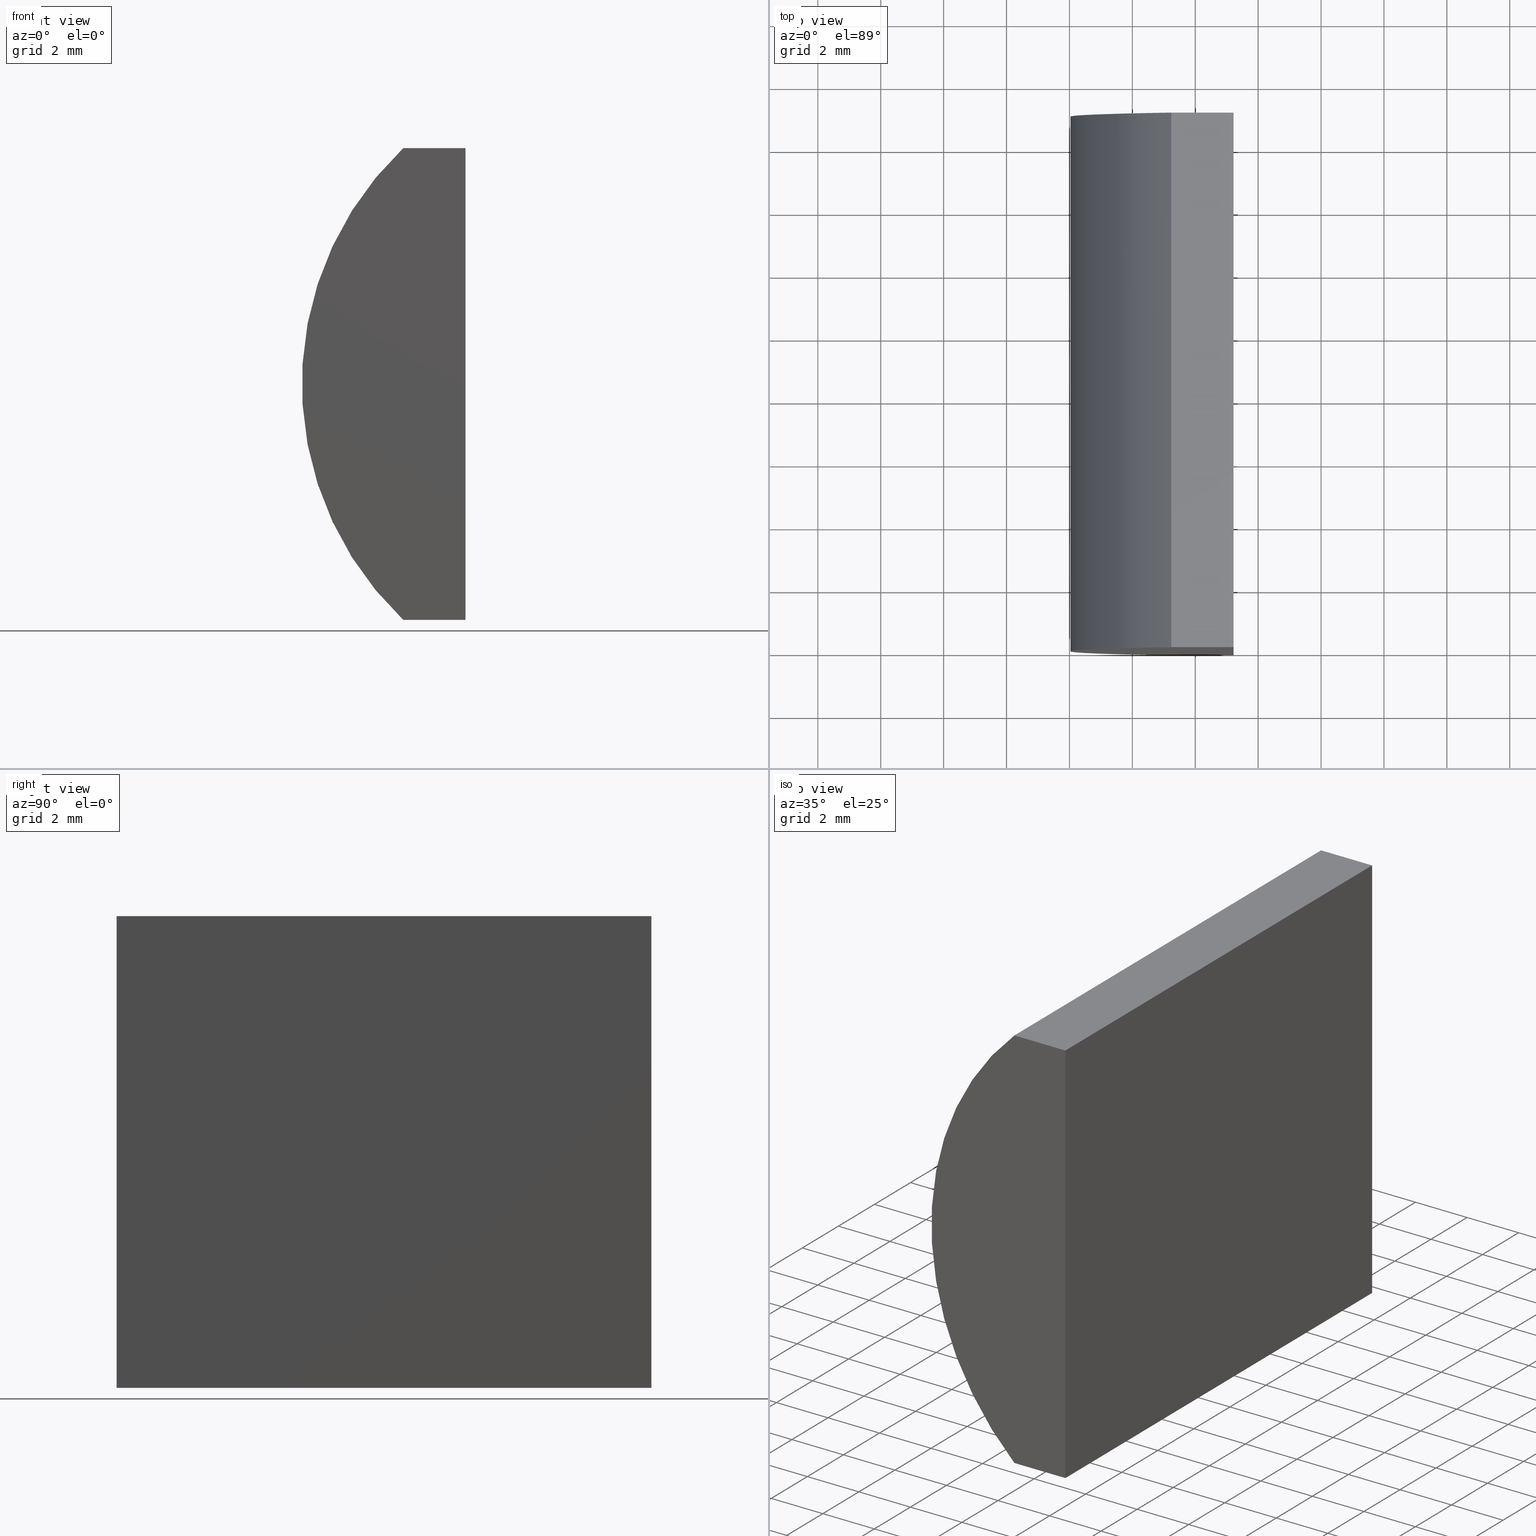
[diagram: canonical four-view strip — front | top / right | iso, engineering-drawing reading convention]
A machine part, canonical four-view strip (front | top / right | iso — engineering-drawing reading convention). The complete STEP part file that produces these views, byte-faithful:
ISO-10303-21;
HEADER;
FILE_DESCRIPTION (( 'STEP AP214' ),
    '1' );
FILE_NAME ('155022.STEP',
    '2019-06-17T05:29:46',
    ( 'user' ),
    ( '΢���й�' ),
    'SwSTEP 2.0',
    'SolidWorks 2016',
    '' );
FILE_SCHEMA (( 'AUTOMOTIVE_DESIGN' ));
ENDSEC;

DATA;
#1 = VECTOR ( 'NONE', #148, 1000.000000000000000 ) ;
#2 = EDGE_LOOP ( 'NONE', ( #169, #146, #159, #126 ) ) ;
#3 = ORIENTED_EDGE ( 'NONE', *, *, #68, .F. ) ;
#4 = ADVANCED_FACE ( 'NONE', ( #118 ), #129, .T. ) ;
#5 = SURFACE_STYLE_USAGE ( .BOTH. , #98 ) ;
#6 = UNCERTAINTY_MEASURE_WITH_UNIT (LENGTH_MEASURE( 1.000000000000000100E-005 ), #197, 'distance_accuracy_value', 'NONE');
#7 = CARTESIAN_POINT ( 'NONE',  ( -2.762772905910325900, 0.0000000000000000000, 7.500000000000000000 ) ) ;
#8 = FACE_OUTER_BOUND ( 'NONE', #138, .T. ) ;
#9 = ORIENTED_EDGE ( 'NONE', *, *, #119, .T. ) ;
#10 = ORIENTED_EDGE ( 'NONE', *, *, #71, .T. ) ;
#11 = EDGE_CURVE ( 'NONE', #115, #194, #108, .T. ) ;
#12 = VERTEX_POINT ( 'NONE', #149 ) ;
#13 = DIRECTION ( 'NONE',  ( 1.000000000000000000, 0.0000000000000000000, 0.0000000000000000000 ) ) ;
#14 = VECTOR ( 'NONE', #84, 1000.000000000000000 ) ;
#15 = PRODUCT_DEFINITION ( 'δ֪', '', #168, #96 ) ;
#16 = APPLICATION_CONTEXT ( 'automotive_design' ) ;
#17 = CARTESIAN_POINT ( 'NONE',  ( -2.762772905910325900, 0.0000000000000000000, -7.500000000000000000 ) ) ;
#18 = ORIENTED_EDGE ( 'NONE', *, *, #21, .T. ) ;
#19 = DIRECTION ( 'NONE',  ( -3.469446951953612200E-016, -0.0000000000000000000, -1.000000000000000000 ) ) ;
#20 =( LENGTH_UNIT ( ) NAMED_UNIT ( * ) SI_UNIT ( .MILLI., .METRE. ) );
#21 = EDGE_CURVE ( 'NONE', #77, #115, #198, .T. ) ;
#22 = CARTESIAN_POINT ( 'NONE',  ( -2.762772905910325900, 17.00000000000000000, 7.500000000000000000 ) ) ;
#23 = CARTESIAN_POINT ( 'NONE',  ( 4.355204334851265500, 0.0000000000000000000, 4.286263797015675000E-017 ) ) ;
#24 = CARTESIAN_POINT ( 'NONE',  ( 4.355204334851265500, 17.00000000000000000, 4.286263797015675000E-017 ) ) ;
#25 = STYLED_ITEM ( 'NONE', ( #165 ), #136 ) ;
#26 = DIRECTION ( 'NONE',  ( 4.385094631596678500E-015, -0.0000000000000000000, 1.000000000000000000 ) ) ;
#27 = CARTESIAN_POINT ( 'NONE',  ( -2.762772905910325900, 17.00000000000000000, -7.500000000000000000 ) ) ;
#28 = DIRECTION ( 'NONE',  ( -1.000000000000000000, 0.0000000000000000000, 3.469446951953612200E-016 ) ) ;
#29 = LINE ( 'NONE', #7, #65 ) ;
#30 =( GEOMETRIC_REPRESENTATION_CONTEXT ( 3 ) GLOBAL_UNCERTAINTY_ASSIGNED_CONTEXT ( ( #93 ) ) GLOBAL_UNIT_ASSIGNED_CONTEXT ( ( #20, #36, #199 ) ) REPRESENTATION_CONTEXT ( 'NONE', 'WORKASPACE' ) );
#31 = CLOSED_SHELL ( 'NONE', ( #4, #120, #140, #189, #61, #80 ) ) ;
#32 = ORIENTED_EDGE ( 'NONE', *, *, #180, .T. ) ;
#33 =( LENGTH_UNIT ( ) NAMED_UNIT ( * ) SI_UNIT ( .MILLI., .METRE. ) );
#34 = AXIS2_PLACEMENT_3D ( 'NONE', #191, #28, #92 ) ;
#35 = FILL_AREA_STYLE_COLOUR ( '', #152 ) ;
#36 =( NAMED_UNIT ( * ) PLANE_ANGLE_UNIT ( ) SI_UNIT ( $, .RADIAN. ) );
#37 = LINE ( 'NONE', #17, #47 ) ;
#38 = ORIENTED_EDGE ( 'NONE', *, *, #79, .T. ) ;
#39 =( NAMED_UNIT ( * ) PLANE_ANGLE_UNIT ( ) SI_UNIT ( $, .RADIAN. ) );
#40 =( GEOMETRIC_REPRESENTATION_CONTEXT ( 3 ) GLOBAL_UNCERTAINTY_ASSIGNED_CONTEXT ( ( #144 ) ) GLOBAL_UNIT_ASSIGNED_CONTEXT ( ( #33, #100, #104 ) ) REPRESENTATION_CONTEXT ( 'NONE', 'WORKASPACE' ) );
#41 = CARTESIAN_POINT ( 'NONE',  ( -2.762772905910325900, 17.00000000000000000, 7.500000000000000000 ) ) ;
#42 = VECTOR ( 'NONE', #203, 1000.000000000000000 ) ;
#43 = EDGE_CURVE ( 'NONE', #115, #181, #166, .T. ) ;
#44 = CARTESIAN_POINT ( 'NONE',  ( -2.762772905910325900, 17.00000000000000000, -7.500000000000000000 ) ) ;
#45 = SURFACE_STYLE_FILL_AREA ( #167 ) ;
#46 = MECHANICAL_DESIGN_GEOMETRIC_PRESENTATION_REPRESENTATION (  '', ( #97 ), #30 ) ;
#47 = VECTOR ( 'NONE', #188, 1000.000000000000000 ) ;
#48 = SURFACE_STYLE_USAGE ( .BOTH. , #137 ) ;
#49 = DIRECTION ( 'NONE',  ( 0.0000000000000000000, 0.0000000000000000000, -1.000000000000000000 ) ) ;
#50 = LINE ( 'NONE', #124, #99 ) ;
#51 = ORIENTED_EDGE ( 'NONE', *, *, #119, .F. ) ;
#52 = AXIS2_PLACEMENT_3D ( 'NONE', #121, #88, #13 ) ;
#53 = ORIENTED_EDGE ( 'NONE', *, *, #43, .T. ) ;
#54 = CARTESIAN_POINT ( 'NONE',  ( -2.762772905910325900, 17.00000000000000000, -7.500000000000000000 ) ) ;
#55 = APPLICATION_PROTOCOL_DEFINITION ( 'draft international standard', 'automotive_design', 1998, #147 ) ;
#56 = PRESENTATION_LAYER_ASSIGNMENT (  '', '', ( #97 ) ) ;
#57 = PLANE ( 'NONE',  #184 ) ;
#58 =( GEOMETRIC_REPRESENTATION_CONTEXT ( 3 ) GLOBAL_UNCERTAINTY_ASSIGNED_CONTEXT ( ( #6 ) ) GLOBAL_UNIT_ASSIGNED_CONTEXT ( ( #197, #39, #185 ) ) REPRESENTATION_CONTEXT ( 'NONE', 'WORKASPACE' ) );
#59 = DIRECTION ( 'NONE',  ( 0.0000000000000000000, 1.000000000000000000, 0.0000000000000000000 ) ) ;
#60 = VERTEX_POINT ( 'NONE', #161 ) ;
#61 = ADVANCED_FACE ( 'NONE', ( #117 ), #57, .T. ) ;
#62 = PRESENTATION_LAYER_ASSIGNMENT (  '', '', ( #25 ) ) ;
#63 = PRODUCT_DEFINITION_SHAPE ( 'NONE', 'NONE',  #15 ) ;
#64 = CARTESIAN_POINT ( 'NONE',  ( -2.762772905910325900, 0.0000000000000000000, -7.500000000000000000 ) ) ;
#65 = VECTOR ( 'NONE', #73, 1000.000000000000000 ) ;
#66 = CARTESIAN_POINT ( 'NONE',  ( -0.7847956651487412200, 17.00000000000000000, -7.500000000000008000 ) ) ;
#67 = ORIENTED_EDGE ( 'NONE', *, *, #131, .T. ) ;
#68 = EDGE_CURVE ( 'NONE', #82, #12, #86, .T. ) ;
#69 = EDGE_LOOP ( 'NONE', ( #157, #173, #114, #78 ) ) ;
#70 = FACE_OUTER_BOUND ( 'NONE', #69, .T. ) ;
#71 = EDGE_CURVE ( 'NONE', #76, #12, #107, .T. ) ;
#72 = DIRECTION ( 'NONE',  ( 0.0000000000000000000, 0.0000000000000000000, -1.000000000000000000 ) ) ;
#73 = DIRECTION ( 'NONE',  ( 1.000000000000000000, 0.0000000000000000000, 0.0000000000000000000 ) ) ;
#74 = DIRECTION ( 'NONE',  ( 0.0000000000000000000, -0.0000000000000000000, 1.000000000000000000 ) ) ;
#75 = VECTOR ( 'NONE', #200, 1000.000000000000000 ) ;
#76 = VERTEX_POINT ( 'NONE', #85 ) ;
#77 = VERTEX_POINT ( 'NONE', #163 ) ;
#78 = ORIENTED_EDGE ( 'NONE', *, *, #11, .T. ) ;
#79 = EDGE_CURVE ( 'NONE', #12, #60, #29, .T. ) ;
#80 = ADVANCED_FACE ( 'NONE', ( #81 ), #94, .F. ) ;
#81 = FACE_OUTER_BOUND ( 'NONE', #112, .T. ) ;
#82 = VERTEX_POINT ( 'NONE', #64 ) ;
#83 = AXIS2_PLACEMENT_3D ( 'NONE', #23, #164, #102 ) ;
#84 = DIRECTION ( 'NONE',  ( -0.0000000000000000000, -1.000000000000000000, -0.0000000000000000000 ) ) ;
#85 = CARTESIAN_POINT ( 'NONE',  ( -2.762772905910325900, 17.00000000000000000, 7.500000000000000000 ) ) ;
#86 = CIRCLE ( 'NONE', #83, 10.34000000000000000 ) ;
#87 = AXIS2_PLACEMENT_3D ( 'NONE', #44, #26, #183 ) ;
#88 = DIRECTION ( 'NONE',  ( 0.0000000000000000000, 0.0000000000000000000, 1.000000000000000000 ) ) ;
#89 = CARTESIAN_POINT ( 'NONE',  ( -2.762772905910325900, 17.00000000000000000, 7.500000000000000000 ) ) ;
#90 = VECTOR ( 'NONE', #139, 1000.000000000000000 ) ;
#91 = ORIENTED_EDGE ( 'NONE', *, *, #171, .F. ) ;
#92 = DIRECTION ( 'NONE',  ( 3.469446951953612200E-016, 0.0000000000000000000, 1.000000000000000000 ) ) ;
#93 = UNCERTAINTY_MEASURE_WITH_UNIT (LENGTH_MEASURE( 1.000000000000000100E-005 ), #20, 'distance_accuracy_value', 'NONE');
#94 = PLANE ( 'NONE',  #196 ) ;
#95 = FACE_OUTER_BOUND ( 'NONE', #101, .T. ) ;
#96 = PRODUCT_DEFINITION_CONTEXT ( 'detailed design', #147, 'design' ) ;
#97 = STYLED_ITEM ( 'NONE', ( #156 ), #187 ) ;
#98 = SURFACE_SIDE_STYLE ('',( #113 ) ) ;
#99 = VECTOR ( 'NONE', #19, 1000.000000000000000 ) ;
#100 =( NAMED_UNIT ( * ) PLANE_ANGLE_UNIT ( ) SI_UNIT ( $, .RADIAN. ) );
#101 = EDGE_LOOP ( 'NONE', ( #38, #123, #51, #10 ) ) ;
#102 = DIRECTION ( 'NONE',  ( 0.0000000000000000000, 0.0000000000000000000, 1.000000000000000000 ) ) ;
#103 = PRODUCT_CONTEXT ( 'NONE', #16, 'mechanical' ) ;
#104 =( NAMED_UNIT ( * ) SI_UNIT ( $, .STERADIAN. ) SOLID_ANGLE_UNIT ( ) );
#105 = PRODUCT_RELATED_PRODUCT_CATEGORY ( 'part', '', ( #170 ) ) ;
#106 = DIRECTION ( 'NONE',  ( -0.0000000000000000000, -1.000000000000000000, -0.0000000000000000000 ) ) ;
#107 = LINE ( 'NONE', #22, #42 ) ;
#108 = LINE ( 'NONE', #182, #75 ) ;
#109 = CARTESIAN_POINT ( 'NONE',  ( 4.355204334851265500, 17.00000000000000000, 4.286263797015675000E-017 ) ) ;
#110 = LINE ( 'NONE', #89, #90 ) ;
#111 = COLOUR_RGB ( '',1.000000000000000000, 1.000000000000000000, 1.000000000000000000 ) ;
#112 = EDGE_LOOP ( 'NONE', ( #3, #179, #91, #155 ) ) ;
#113 = SURFACE_STYLE_FILL_AREA ( #190 ) ;
#114 = ORIENTED_EDGE ( 'NONE', *, *, #43, .F. ) ;
#115 = VERTEX_POINT ( 'NONE', #174 ) ;
#116 = AXIS2_PLACEMENT_3D ( 'NONE', #109, #135, #151 ) ;
#117 = FACE_OUTER_BOUND ( 'NONE', #186, .T. ) ;
#118 = FACE_OUTER_BOUND ( 'NONE', #2, .T. ) ;
#119 = EDGE_CURVE ( 'NONE', #76, #77, #110, .T. ) ;
#120 = ADVANCED_FACE ( 'NONE', ( #95 ), #177, .F. ) ;
#121 = CARTESIAN_POINT ( 'NONE',  ( 0.0000000000000000000, 0.0000000000000000000, 0.0000000000000000000 ) ) ;
#122 = CIRCLE ( 'NONE', #116, 10.34000000000000000 ) ;
#123 = ORIENTED_EDGE ( 'NONE', *, *, #180, .F. ) ;
#124 = CARTESIAN_POINT ( 'NONE',  ( -0.7847956651487412200, 0.0000000000000000000, -7.500000000000008000 ) ) ;
#125 = DIRECTION ( 'NONE',  ( -1.000000000000000000, 0.0000000000000000000, -0.0000000000000000000 ) ) ;
#126 = ORIENTED_EDGE ( 'NONE', *, *, #150, .T. ) ;
#127 = CARTESIAN_POINT ( 'NONE',  ( 4.355204334851265500, 0.0000000000000000000, 4.286263797015675000E-017 ) ) ;
#128 = LINE ( 'NONE', #27, #134 ) ;
#129 = CYLINDRICAL_SURFACE ( 'NONE', #176, 10.34000000000000000 ) ;
#130 = APPLICATION_PROTOCOL_DEFINITION ( 'draft international standard', 'automotive_design', 1998, #16 ) ;
#131 = EDGE_CURVE ( 'NONE', #181, #76, #122, .T. ) ;
#132 = DIRECTION ( 'NONE',  ( -1.000000000000000000, -0.0000000000000000000, 4.385094631596678500E-015 ) ) ;
#133 = FILL_AREA_STYLE_COLOUR ( '', #111 ) ;
#134 = VECTOR ( 'NONE', #106, 1000.000000000000000 ) ;
#135 = DIRECTION ( 'NONE',  ( 0.0000000000000000000, 1.000000000000000000, 0.0000000000000000000 ) ) ;
#136 = ADVANCED_BREP_SHAPE_REPRESENTATION ( '155022', ( #187, #52 ), #58 ) ;
#137 = SURFACE_SIDE_STYLE ('',( #45 ) ) ;
#138 = EDGE_LOOP ( 'NONE', ( #204, #154, #193, #32 ) ) ;
#139 = DIRECTION ( 'NONE',  ( 1.000000000000000000, 0.0000000000000000000, 0.0000000000000000000 ) ) ;
#140 = ADVANCED_FACE ( 'NONE', ( #8 ), #158, .F. ) ;
#141 = AXIS2_PLACEMENT_3D ( 'NONE', #41, #49, #125 ) ;
#142 = CARTESIAN_POINT ( 'NONE',  ( -2.762772905910325900, 17.00000000000000000, -7.500000000000000000 ) ) ;
#143 = EDGE_CURVE ( 'NONE', #194, #82, #37, .T. ) ;
#144 = UNCERTAINTY_MEASURE_WITH_UNIT (LENGTH_MEASURE( 1.000000000000000100E-005 ), #33, 'distance_accuracy_value', 'NONE');
#145 = CARTESIAN_POINT ( 'NONE',  ( 4.355204334851265500, 17.00000000000000000, 4.286263797015675000E-017 ) ) ;
#146 = ORIENTED_EDGE ( 'NONE', *, *, #71, .F. ) ;
#147 = APPLICATION_CONTEXT ( 'automotive_design' ) ;
#148 = DIRECTION ( 'NONE',  ( -3.469446951953612200E-016, -0.0000000000000000000, -1.000000000000000000 ) ) ;
#149 = CARTESIAN_POINT ( 'NONE',  ( -2.762772905910325900, 0.0000000000000000000, 7.500000000000000000 ) ) ;
#150 = EDGE_CURVE ( 'NONE', #181, #82, #128, .T. ) ;
#151 = DIRECTION ( 'NONE',  ( 0.0000000000000000000, 0.0000000000000000000, 1.000000000000000000 ) ) ;
#152 = COLOUR_RGB ( '',1.000000000000000000, 1.000000000000000000, 1.000000000000000000 ) ;
#153 = CARTESIAN_POINT ( 'NONE',  ( -0.7847956651487360000, 17.00000000000000000, 7.500000000000000000 ) ) ;
#154 = ORIENTED_EDGE ( 'NONE', *, *, #11, .F. ) ;
#155 = ORIENTED_EDGE ( 'NONE', *, *, #79, .F. ) ;
#156 = PRESENTATION_STYLE_ASSIGNMENT (( #5 ) ) ;
#157 = ORIENTED_EDGE ( 'NONE', *, *, #143, .T. ) ;
#158 = PLANE ( 'NONE',  #34 ) ;
#159 = ORIENTED_EDGE ( 'NONE', *, *, #131, .F. ) ;
#160 = DIRECTION ( 'NONE',  ( 0.0000000000000000000, -0.0000000000000000000, 1.000000000000000000 ) ) ;
#161 = CARTESIAN_POINT ( 'NONE',  ( -0.7847956651487360000, 0.0000000000000000000, 7.500000000000000000 ) ) ;
#162 = VECTOR ( 'NONE', #132, 1000.000000000000000 ) ;
#163 = CARTESIAN_POINT ( 'NONE',  ( -0.7847956651487360000, 17.00000000000000000, 7.500000000000000000 ) ) ;
#164 = DIRECTION ( 'NONE',  ( 0.0000000000000000000, 1.000000000000000000, 0.0000000000000000000 ) ) ;
#165 = PRESENTATION_STYLE_ASSIGNMENT (( #48 ) ) ;
#166 = LINE ( 'NONE', #54, #162 ) ;
#167 = FILL_AREA_STYLE ('',( #133 ) ) ;
#168 = PRODUCT_DEFINITION_FORMATION_WITH_SPECIFIED_SOURCE ( '�κ�', '', #170, .NOT_KNOWN. ) ;
#169 = ORIENTED_EDGE ( 'NONE', *, *, #68, .T. ) ;
#170 = PRODUCT ( '155022', '155022', '', ( #103 ) ) ;
#171 = EDGE_CURVE ( 'NONE', #60, #194, #50, .T. ) ;
#172 = SHAPE_DEFINITION_REPRESENTATION ( #63, #136 ) ;
#173 = ORIENTED_EDGE ( 'NONE', *, *, #150, .F. ) ;
#174 = CARTESIAN_POINT ( 'NONE',  ( -0.7847956651487412200, 17.00000000000000000, -7.500000000000008000 ) ) ;
#175 = CARTESIAN_POINT ( 'NONE',  ( -0.7847956651487412200, 0.0000000000000000000, -7.500000000000008000 ) ) ;
#176 = AXIS2_PLACEMENT_3D ( 'NONE', #145, #178, #72 ) ;
#177 = PLANE ( 'NONE',  #141 ) ;
#178 = DIRECTION ( 'NONE',  ( -0.0000000000000000000, -1.000000000000000000, -0.0000000000000000000 ) ) ;
#179 = ORIENTED_EDGE ( 'NONE', *, *, #143, .F. ) ;
#180 = EDGE_CURVE ( 'NONE', #77, #60, #192, .T. ) ;
#181 = VERTEX_POINT ( 'NONE', #142 ) ;
#182 = CARTESIAN_POINT ( 'NONE',  ( -0.7847956651487412200, 17.00000000000000000, -7.500000000000008000 ) ) ;
#183 = DIRECTION ( 'NONE',  ( 1.000000000000000000, 0.0000000000000000000, -4.385094631596678500E-015 ) ) ;
#184 = AXIS2_PLACEMENT_3D ( 'NONE', #24, #195, #160 ) ;
#185 =( NAMED_UNIT ( * ) SI_UNIT ( $, .STERADIAN. ) SOLID_ANGLE_UNIT ( ) );
#186 = EDGE_LOOP ( 'NONE', ( #67, #9, #18, #53 ) ) ;
#187 = MANIFOLD_SOLID_BREP ( '͹̨-����1', #31 ) ;
#188 = DIRECTION ( 'NONE',  ( -1.000000000000000000, -0.0000000000000000000, 4.385094631596678500E-015 ) ) ;
#189 = ADVANCED_FACE ( 'NONE', ( #70 ), #202, .F. ) ;
#190 = FILL_AREA_STYLE ('',( #35 ) ) ;
#191 = CARTESIAN_POINT ( 'NONE',  ( -0.7847956651487412200, 17.00000000000000000, -7.500000000000008000 ) ) ;
#192 = LINE ( 'NONE', #153, #14 ) ;
#193 = ORIENTED_EDGE ( 'NONE', *, *, #21, .F. ) ;
#194 = VERTEX_POINT ( 'NONE', #175 ) ;
#195 = DIRECTION ( 'NONE',  ( 0.0000000000000000000, 1.000000000000000000, 0.0000000000000000000 ) ) ;
#196 = AXIS2_PLACEMENT_3D ( 'NONE', #127, #59, #74 ) ;
#197 =( LENGTH_UNIT ( ) NAMED_UNIT ( * ) SI_UNIT ( .MILLI., .METRE. ) );
#198 = LINE ( 'NONE', #66, #1 ) ;
#199 =( NAMED_UNIT ( * ) SI_UNIT ( $, .STERADIAN. ) SOLID_ANGLE_UNIT ( ) );
#200 = DIRECTION ( 'NONE',  ( -0.0000000000000000000, -1.000000000000000000, -0.0000000000000000000 ) ) ;
#201 = MECHANICAL_DESIGN_GEOMETRIC_PRESENTATION_REPRESENTATION (  '', ( #25 ), #40 ) ;
#202 = PLANE ( 'NONE',  #87 ) ;
#203 = DIRECTION ( 'NONE',  ( -0.0000000000000000000, -1.000000000000000000, -0.0000000000000000000 ) ) ;
#204 = ORIENTED_EDGE ( 'NONE', *, *, #171, .T. ) ;
ENDSEC;
END-ISO-10303-21;
